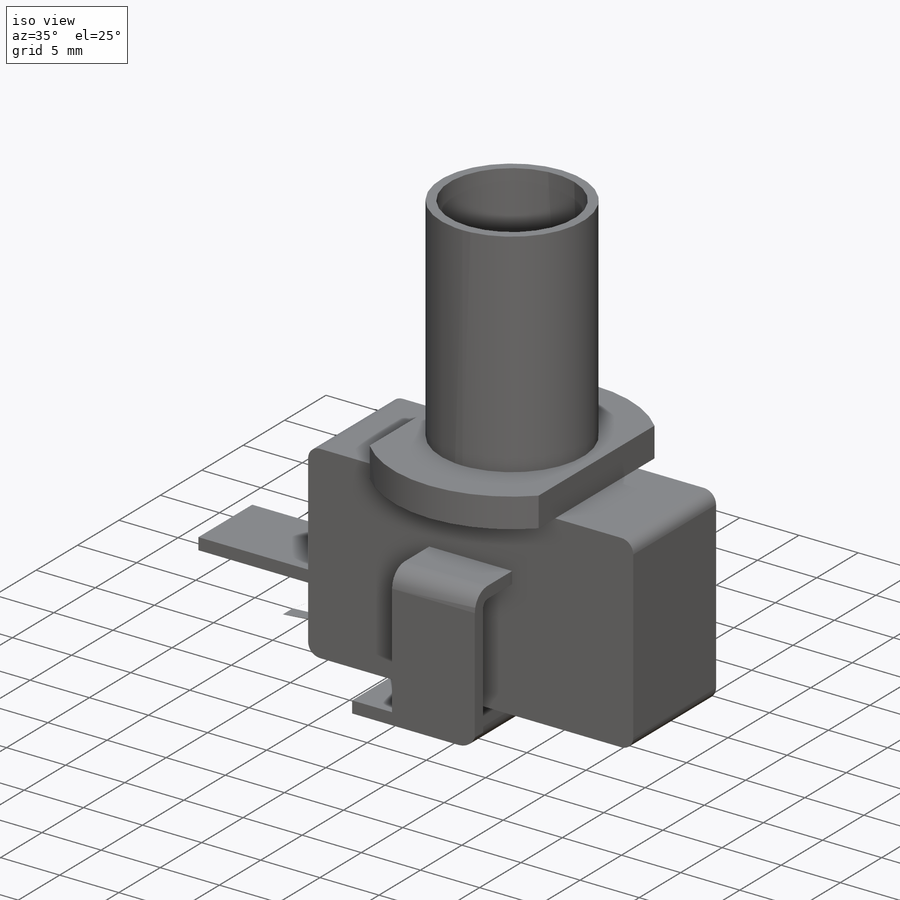
[diagram: iso view]
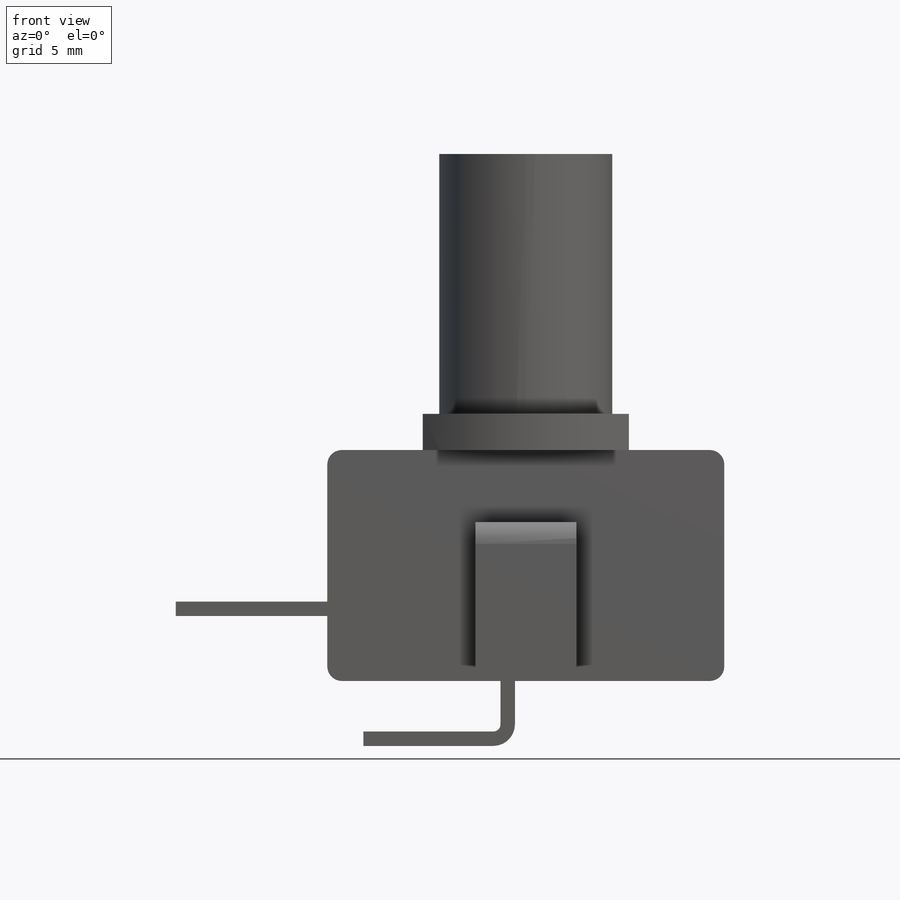
[diagram: front view]
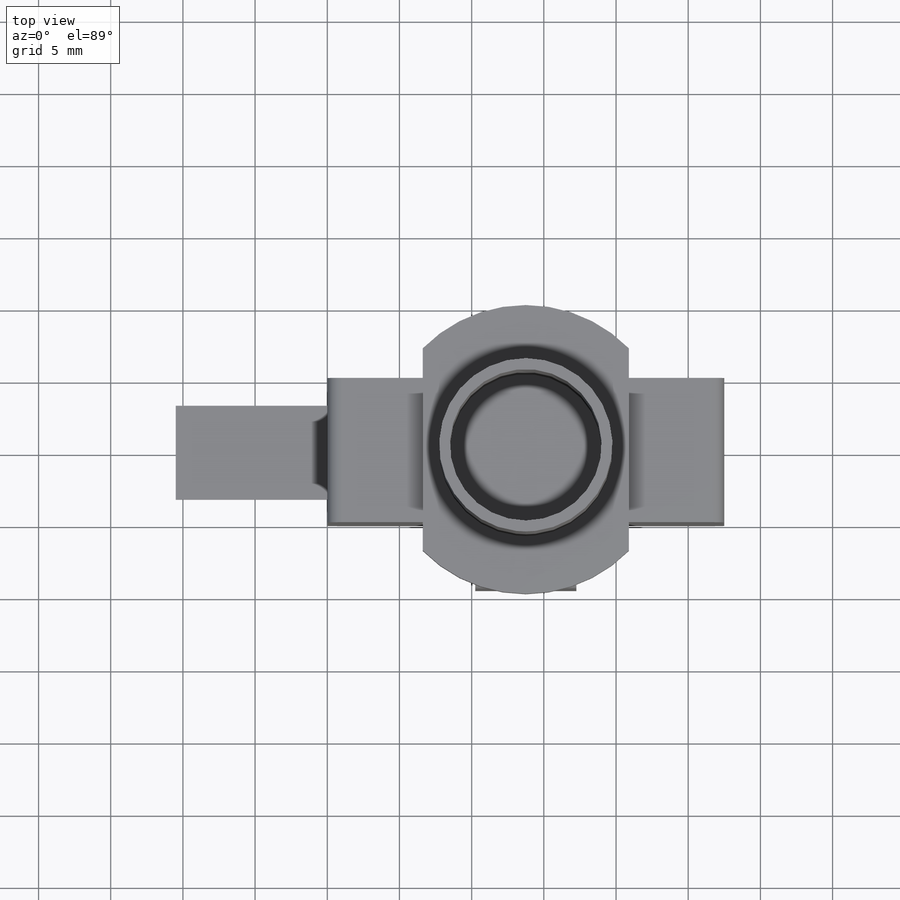
[diagram: top view]
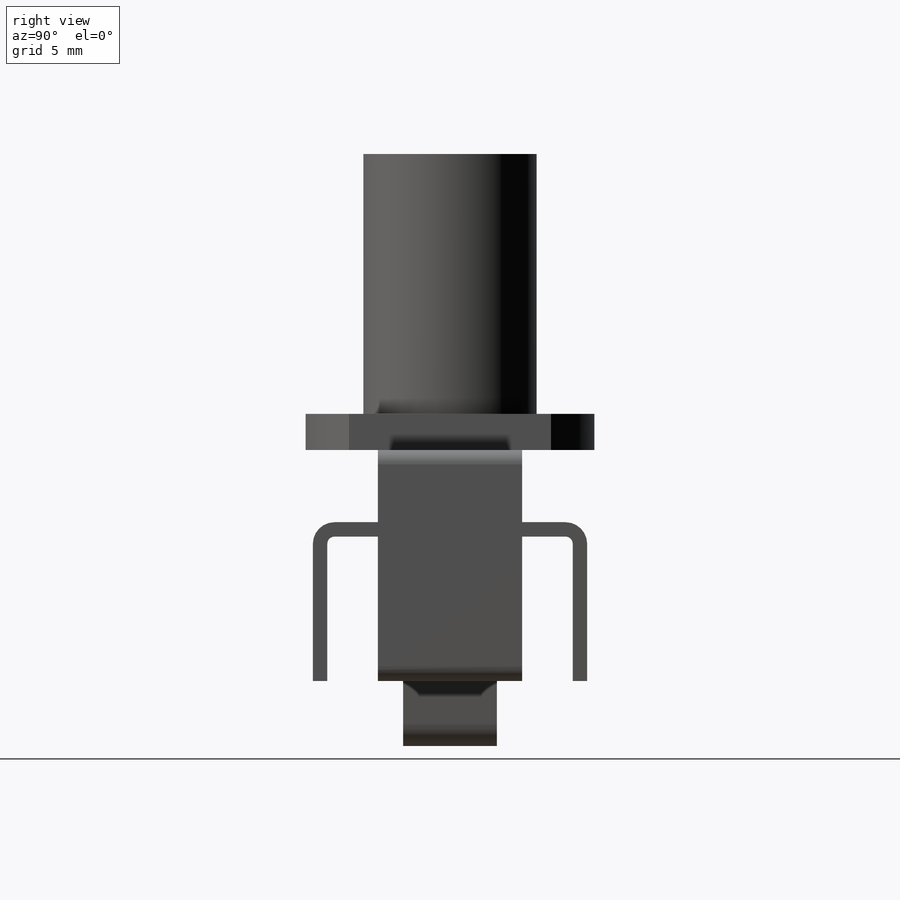
[diagram: right view]
SOLIDWORKS PART (.sldprt)
format: sldprt  version: not decoded by parser v0  size: 303,616 bytes
history: native  units: mm
features: sketch x9, extrude x4, sweep x2, material x1, mirror x1, cut_extrude x1 (+11 scaffold rows collapsed)
feature tree (29):
  scaffold x11  (default folders/planes/origin — collapsed)
  material  "ABS"
  sketch  "Sketch1"  dims[D3=1.0mm D1=27.5mm D2=16.0mm]
  extrude  "Boss-Extrude1"  Depth=5mm
  sketch  "Sketch2"  dims[D1=20.0mm D2=14.0mm]
  extrude  "Boss-Extrude2"  Depth=2.5mm
  sketch  "Sketch3"  dims[D1=6.5mm D2=1.0mm D3=12.0mm]
  sketch  "Sketch5"  dims[D4=0.5mm D1=9.5mm D2=3.5mm D3=12.0mm]
  sweep  "Sweep1"
  sketch  "Sketch6"  dims[D1=6.5mm D2=1.0mm D3=4.5mm]
  extrude  "Boss-Extrude3"  Depth=10.5mm
  sketch  "Sketch7"  dims[D1=7.0mm D2=10.0mm D3=1.0mm]
  sketch  "Sketch8"  dims[D4=0.5mm D1=3.5mm D2=10.0mm D3=10.0mm]
  sweep  "Sweep2"
  mirror  "Mirror1"
  sketch  "Sketch9"  dims[D1=12.0mm]
  extrude  "Boss-Extrude4"  Depth=18mm
  sketch  "Sketch10"  dims[D1=10.5mm]
  cut_extrude  "Cut-Extrude1"  [1 undecoded]
decode coverage: 13 of 17 modeling features carry decoded parameters
note: 1 parameter value undecoded
note: suppression state not decoded; provenance and decode notes live in map.json
